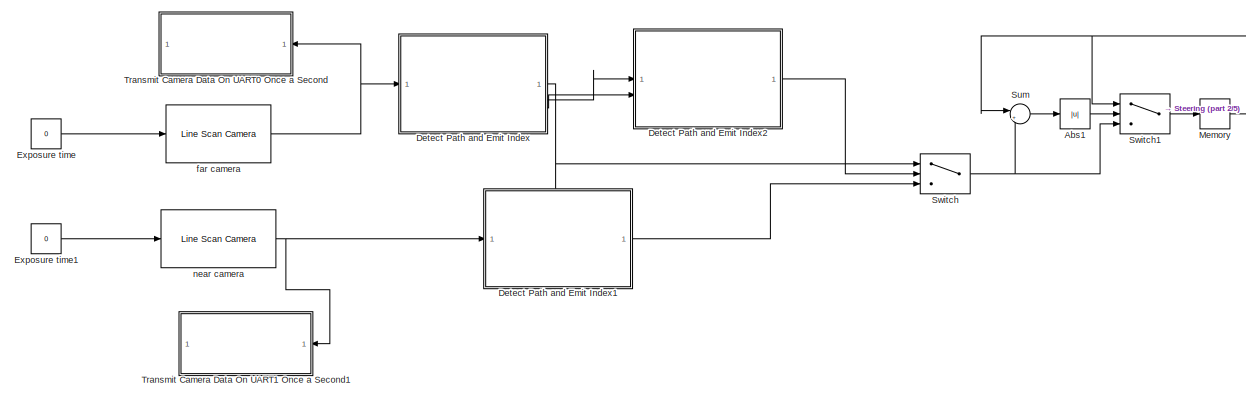
[diagram: root canvas - part 1/5, top center region]
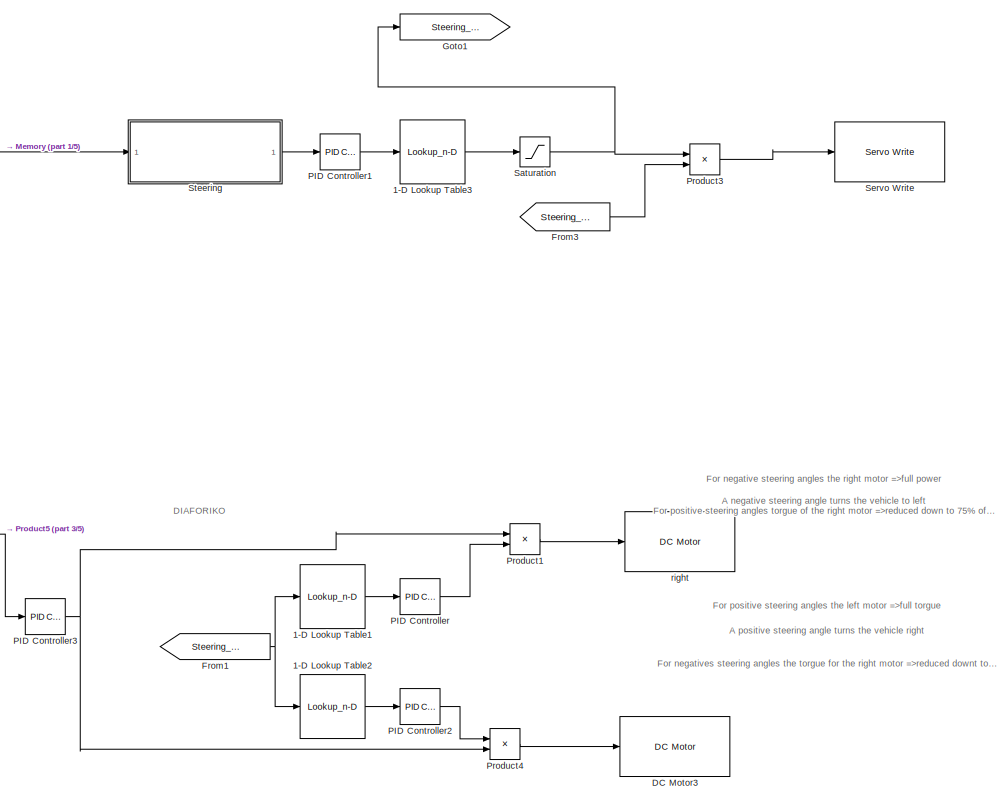
[diagram: root canvas - part 2/5, middle right region]
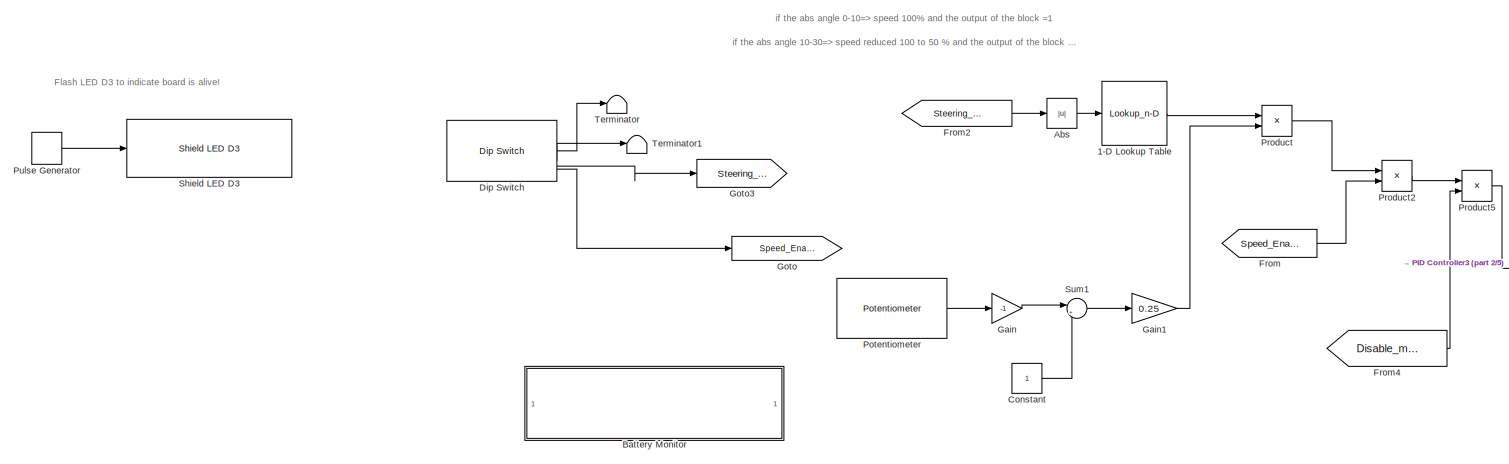
[diagram: root canvas - part 3/5, central region]
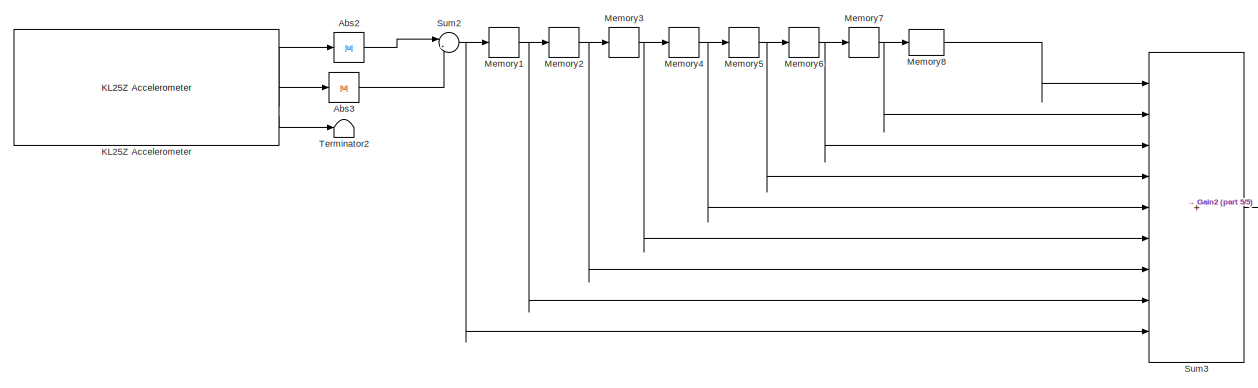
[diagram: root canvas - part 4/5, bottom left region]
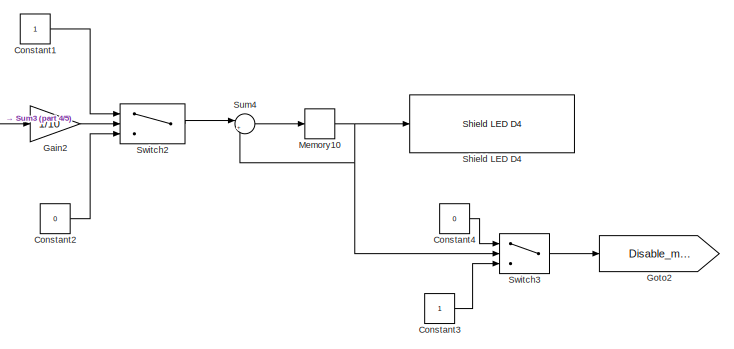
[diagram: root canvas - part 5/5, bottom center region]
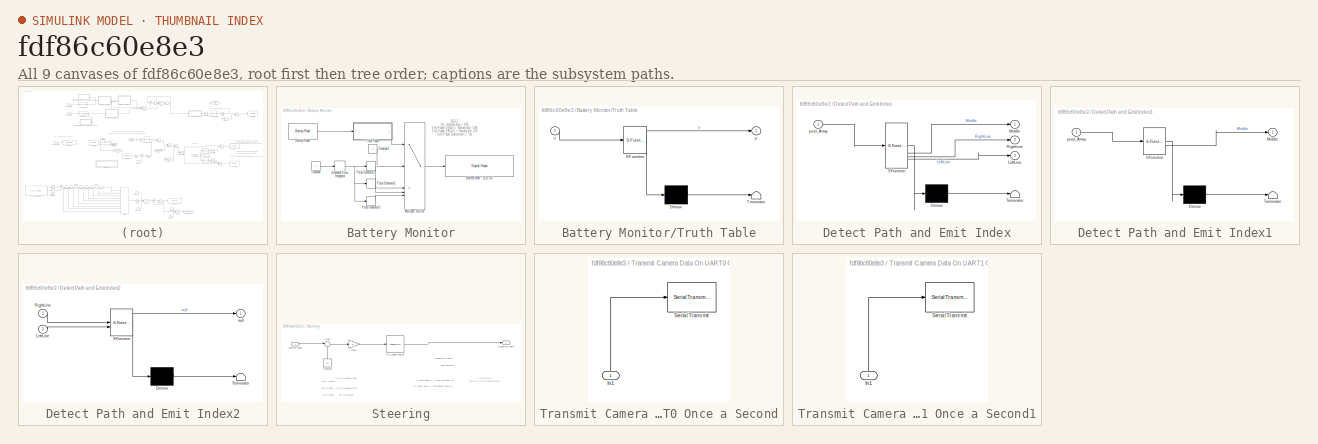
[diagram: thumbnail index - all 9 canvases of the model, root first then tree order]
MODEL slx_fdf86c60e8e3
KIND model
CONFIG AbsTol = auto
CONFIG EnableMultiTasking = off
CONFIG FixedStep = auto
CONFIG MaxStep = auto
CONFIG MinStep = auto
CONFIG RelTol = 1e-3
CONFIG SampleTimeConstraint = Unconstrained
CONFIG SolverName = VariableStepAuto
CONFIG StartTime = 0.0
CONFIG StopTime = 10.0
BLOCK [Lookup_n-D] 1-D Lookup Table
  BreakpointsForDimension1 = [0  10 20 30 60]
  ExtrapMethod = Clip
  InputPortMap = u0
  InternalRulePriority = Speed
  NumberOfTableDimensions = 1
  RndMeth = Simplest
  Table = [ 1.4 0.9 1.2 0.95 1.4]
  UseLastTableValue = on
BLOCK [Lookup_n-D] 1-D Lookup Table1
  BreakpointsForDimension1 = [-60 0 10 20 60]
  ExtrapMethod = Clip
  InputPortMap = u0
  InternalRulePriority = Speed
  NumberOfTableDimensions = 1
  RndMeth = Simplest
  Table = [1.1 1.1 1 0.6 0.8]
  UseLastTableValue = on
BLOCK [Lookup_n-D] 1-D Lookup Table2
  BreakpointsForDimension1 = [-60  -20 -10  0 60]
  ExtrapMethod = Clip
  InputPortMap = u0
  InternalRulePriority = Speed
  NumberOfTableDimensions = 1
  RndMeth = Simplest
  Table = [0.8 0.6 1 1.1 1.1]
  UseLastTableValue = on
BLOCK [Lookup_n-D] 1-D Lookup Table3
  BreakpointsForDimension1 = [-60 -9 9 60]
  ExtrapMethod = Clip
  InputPortMap = u0
  InternalRulePriority = Speed
  NumberOfTableDimensions = 1
  RndMeth = Simplest
  Table = [-60 0 0 60]
  UseLastTableValue = on
BLOCK [Abs] Abs
  SaturateOnIntegerOverflow = off
BLOCK [Abs] Abs1
  SaturateOnIntegerOverflow = off
BLOCK [Abs] Abs2
  SaturateOnIntegerOverflow = off
BLOCK [Abs] Abs3
  SaturateOnIntegerOverflow = off
BLOCK [SubSystem] Battery Monitor
  SystemSampleTime = 0.1
  TreatAsAtomicUnit = on
BLOCK [Reference] Battery Monitor/Battery Level - LED D5  REF=RHIT_KL25Z_Library/Basic Blocks/Digital Output
  SourceBlock = RHIT_KL25Z_Library/Basic Blocks/Digital Output
  SourceProductName = RHIT KL25Z Library
  SourceType = KL25Z Ditigal Output
BLOCK [Reference] Battery Monitor/Battery Read  REF=frdmtfcshieldlib/Battery Read
  SourceBlock = frdmtfcshieldlib/Battery Read
  SourceType = Battery Read
BLOCK [Constant] Battery Monitor/Constant
BLOCK [Constant] Battery Monitor/Constant3
  OutDataTypeStr = single
BLOCK [DiscreteIntegrator] Battery Monitor/Discrete-Time Integrator
  ICPrevOutput = DiscIntNeverNeededParam
  ICPrevScaledInput = DiscIntNeverNeededParam
  InitialConditionSetting = Auto
  SampleTime = -1
BLOCK [MultiPortSwitch] Battery Monitor/Multiport Switch
  InputSameDT = off
  Inputs = 4
  SaturateOnIntegerOverflow = off
BLOCK [DiscretePulseGenerator] Battery Monitor/Pulse Generator1
  Period = 1
  PulseType = Time based
  PulseWidth = 50
  TimeSource = Use external signal
BLOCK [DiscretePulseGenerator] Battery Monitor/Pulse Generator2
  Period = .5
  PulseType = Time based
  PulseWidth = 60
  TimeSource = Use external signal
BLOCK [DiscretePulseGenerator] Battery Monitor/Pulse Generator3
  Period = .2
  PulseType = Time based
  PulseWidth = 50
  TimeSource = Use external signal
BLOCK [SubSystem] Battery Monitor/Truth Table
  ErrorFcn = Stateflow.Translate.translate
  PermitHierarchicalResolution = ExplicitOnly
  SFBlockType = Truth Table
  TreatAsAtomicUnit = on
BLOCK [Demux] Battery Monitor/Truth Table/ Demux 
  Outputs = 1
BLOCK [S-Function] Battery Monitor/Truth Table/ SFunction 
  EnableBusSupport = on
  FunctionName = sf_sfun
  PortCounts = [1 2]
  SFcnIsStateOwnerBlock = off
  SFunctionDeploymentMode = off
  Tag = Stateflow S-Function 1
BLOCK [Terminator] Battery Monitor/Truth Table/ Terminator 
BLOCK [Inport] Battery Monitor/Truth Table/u
BLOCK [Outport] Battery Monitor/Truth Table/y
BLOCK [Constant] Constant
BLOCK [Constant] Constant1
BLOCK [Constant] Constant2
  Value = 0
BLOCK [Constant] Constant3
BLOCK [Constant] Constant4
  Value = 0
BLOCK [Reference] DC Motor3  REF=frdmtfcshieldlib/DC Motor
  SourceBlock = frdmtfcshieldlib/DC Motor
  SourceType = DC Motor
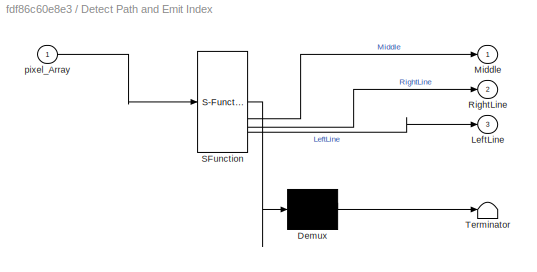
BLOCK [SubSystem] Detect Path and Emit Index
  ErrorFcn = Stateflow.Translate.translate
  PermitHierarchicalResolution = ExplicitOnly
  SFBlockType = MATLAB Function
  TreatAsAtomicUnit = on
BLOCK [Demux] Detect Path and Emit Index/ Demux 
  Outputs = 1
BLOCK [S-Function] Detect Path and Emit Index/ SFunction 
  EnableBusSupport = on
  FunctionName = sf_sfun
  PortCounts = [1 4]
  SFcnIsStateOwnerBlock = off
  SFunctionDeploymentMode = off
  Tag = Stateflow S-Function 2
BLOCK [Terminator] Detect Path and Emit Index/ Terminator 
BLOCK [Outport] Detect Path and Emit Index/LeftLine
  Port = 3
BLOCK [Outport] Detect Path and Emit Index/Middle
BLOCK [Outport] Detect Path and Emit Index/RightLine
  Port = 2
BLOCK [Inport] Detect Path and Emit Index/pixel_Array
BLOCK [SubSystem] Detect Path and Emit Index1
  ErrorFcn = Stateflow.Translate.translate
  PermitHierarchicalResolution = ExplicitOnly
  SFBlockType = MATLAB Function
  TreatAsAtomicUnit = on
BLOCK [Demux] Detect Path and Emit Index1/ Demux 
  Outputs = 1
BLOCK [S-Function] Detect Path and Emit Index1/ SFunction 
  EnableBusSupport = on
  FunctionName = sf_sfun
  PortCounts = [1 2]
  SFcnIsStateOwnerBlock = off
  SFunctionDeploymentMode = off
  Tag = Stateflow S-Function 3
BLOCK [Terminator] Detect Path and Emit Index1/ Terminator 
BLOCK [Outport] Detect Path and Emit Index1/Middle
BLOCK [Inport] Detect Path and Emit Index1/pixel_Array
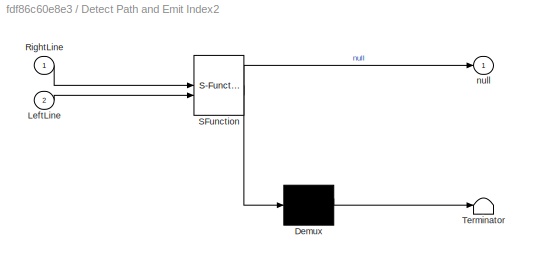
BLOCK [SubSystem] Detect Path and Emit Index2
  ErrorFcn = Stateflow.Translate.translate
  PermitHierarchicalResolution = ExplicitOnly
  SFBlockType = MATLAB Function
  TreatAsAtomicUnit = on
BLOCK [Demux] Detect Path and Emit Index2/ Demux 
  Outputs = 1
BLOCK [S-Function] Detect Path and Emit Index2/ SFunction 
  EnableBusSupport = on
  FunctionName = sf_sfun
  PortCounts = [2 2]
  SFcnIsStateOwnerBlock = off
  SFunctionDeploymentMode = off
  Tag = Stateflow S-Function 4
BLOCK [Terminator] Detect Path and Emit Index2/ Terminator 
BLOCK [Inport] Detect Path and Emit Index2/LeftLine
  Port = 2
BLOCK [Inport] Detect Path and Emit Index2/RightLine
BLOCK [Outport] Detect Path and Emit Index2/null
BLOCK [Reference] Dip Switch  REF=frdmtfcshieldlib/Dip Switch
  SourceBlock = frdmtfcshieldlib/Dip Switch
  SourceType = Dip Switch
BLOCK [Constant] Exposure time
  Value = 0
BLOCK [Constant] Exposure time1
  Value = 0
BLOCK [From] From
  GotoTag = Speed_Enable
BLOCK [From] From1
  GotoTag = Steering_Angle
BLOCK [From] From2
  GotoTag = Steering_Angle
BLOCK [From] From3
  GotoTag = Steering_Enable
BLOCK [From] From4
  GotoTag = Disable_motors
BLOCK [Gain] Gain
  Gain = -1
BLOCK [Gain] Gain1
  Gain = 0.25
BLOCK [Gain] Gain2
  Gain = 1/10
BLOCK [Goto] Goto
  GotoTag = Speed_Enable
BLOCK [Goto] Goto1
  GotoTag = Steering_Angle
BLOCK [Goto] Goto2
  GotoTag = Disable_motors
BLOCK [Goto] Goto3
  GotoTag = Steering_Enable
BLOCK [Reference] KL25Z Accelerometer  REF=RHIT_KL25Z_Library/Sensor Read Functions/KL25Z Accelerometer
  SourceBlock = RHIT_KL25Z_Library/Sensor Read Functions/KL25Z Accelerometer
  SourceProductName = RHIT KL25Z Library
  SourceType = Read the FRDM-KL25Z On-Board Acceletrometer (MMA8451Q)
BLOCK [Memory] Memory
  InitialCondition = 64
BLOCK [Memory] Memory1
BLOCK [Memory] Memory10
BLOCK [Memory] Memory2
BLOCK [Memory] Memory3
BLOCK [Memory] Memory4
BLOCK [Memory] Memory5
BLOCK [Memory] Memory6
BLOCK [Memory] Memory7
BLOCK [Memory] Memory8
BLOCK [Reference] PID Controller  REF=slpidlib/PID Controller
  LibrarySourceBlock = simulink/Continuous/PID Controller
  SourceBlock = slpidlib/PID Controller
  SourceType = PID 1dof
BLOCK [Reference] PID Controller1  REF=slpidlib/PID Controller
  LibrarySourceBlock = simulink/Continuous/PID Controller
  SourceBlock = slpidlib/PID Controller
  SourceType = PID 1dof
BLOCK [Reference] PID Controller2  REF=slpidlib/PID Controller
  LibrarySourceBlock = simulink/Continuous/PID Controller
  SourceBlock = slpidlib/PID Controller
  SourceType = PID 1dof
BLOCK [Reference] PID Controller3  REF=slpidlib/PID Controller
  LibrarySourceBlock = simulink/Continuous/PID Controller
  SourceBlock = slpidlib/PID Controller
  SourceType = PID 1dof
BLOCK [Reference] Potentiometer  REF=frdmtfcshieldlib/Potentiometer
  SourceBlock = frdmtfcshieldlib/Potentiometer
  SourceType = Potentiometer
BLOCK [Product] Product
BLOCK [Product] Product1
BLOCK [Product] Product2
BLOCK [Product] Product3
BLOCK [Product] Product4
BLOCK [Product] Product5
BLOCK [DiscretePulseGenerator] Pulse Generator
  Period = 10
  PulseType = Time based
  PulseWidth = 5
BLOCK [Saturate] Saturation
  LowerLimit = -60
  UpperLimit = 60
BLOCK [Reference] Servo Write  REF=frdmtfcshieldlib/Servo Write
  SourceBlock = frdmtfcshieldlib/Servo Write
  SourceType = Servo Write
BLOCK [Reference] Shield LED D3  REF=Autonomous_Vehicle_Competition/Shield LED D3
  SourceBlock = Autonomous_Vehicle_Competition/Shield LED D3
  SourceProductName = Autonomous Vehicle Competition
  SourceType = Shield LED D3
BLOCK [Reference] Shield LED D4  REF=Autonomous_Vehicle_Competition/Shield LED D4
  SourceBlock = Autonomous_Vehicle_Competition/Shield LED D4
  SourceProductName = Autonomous Vehicle Competition
  SourceType = Shield LED D4
BLOCK [SubSystem] Steering
BLOCK [Lookup_n-D] Steering/1-D Lookup Table3
  BreakpointsForDimension1 = [-60 -9 9 60]
  ExtrapMethod = Clip
  InputPortMap = u0
  InternalRulePriority = Speed
  NumberOfTableDimensions = 1
  RndMeth = Simplest
  Table = [-60 0 0 60]
  UseLastTableValue = on
BLOCK [Constant] Steering/Constant
  NameLocation = right
  Value = 64
BLOCK [Gain] Steering/Gain
  Gain = 5
BLOCK [Outport] Steering/Steering Angle
BLOCK [Sum] Steering/Sum
  Inputs = |+-
BLOCK [Inport] Steering/Vehicle Index
BLOCK [Sum] Sum
  Inputs = |+-
BLOCK [Sum] Sum1
  Inputs = |++
BLOCK [Sum] Sum2
  Inputs = |++
BLOCK [Sum] Sum3
  IconShape = rectangular
  Inputs = |+++++++++
BLOCK [Sum] Sum4
  Inputs = |++
BLOCK [Switch] Switch
  Criteria = u2 > Threshold
  InputSameDT = off
  SaturateOnIntegerOverflow = off
  Threshold = 1
BLOCK [Switch] Switch1
  Criteria = u2 > Threshold
  InputSameDT = off
  SaturateOnIntegerOverflow = off
  Threshold = 10
BLOCK [Switch] Switch2
  Criteria = u2 > Threshold
  InputSameDT = off
  SaturateOnIntegerOverflow = off
  Threshold = 1.5
BLOCK [Switch] Switch3
  Criteria = u2 > Threshold
  InputSameDT = off
  SaturateOnIntegerOverflow = off
BLOCK [Terminator] Terminator
BLOCK [Terminator] Terminator1
BLOCK [Terminator] Terminator2
BLOCK [SubSystem] Transmit Camera Data On UART0 Once a Second
  SystemSampleTime = .26
  TreatAsAtomicUnit = on
BLOCK [Inport] Transmit Camera Data On UART0 Once a Second/In1
  NameLocation = right
BLOCK [Reference] Transmit Camera Data On UART0 Once a Second/Serial Transmit  REF=frdmkl25zlib/Serial Transmit
  SourceBlock = frdmkl25zlib/Serial Transmit
  SourceType = Serial Transmit
BLOCK [SubSystem] Transmit Camera Data On UART1 Once a Second1
  SystemSampleTime = .26
  TreatAsAtomicUnit = on
BLOCK [Inport] Transmit Camera Data On UART1 Once a Second1/In1
  NameLocation = right
BLOCK [Reference] Transmit Camera Data On UART1 Once a Second1/Serial Transmit  REF=frdmkl25zlib/Serial Transmit
  SourceBlock = frdmkl25zlib/Serial Transmit
  SourceType = Serial Transmit
BLOCK [Reference] far camera   REF=frdmtfcshieldlib/Line Scan Camera
  SourceBlock = frdmtfcshieldlib/Line Scan Camera
  SourceType = Line Scan Camera
BLOCK [Reference] near camera  REF=frdmtfcshieldlib/Line Scan Camera
  SourceBlock = frdmtfcshieldlib/Line Scan Camera
  SourceType = Line Scan Camera
BLOCK [Reference] right  REF=frdmtfcshieldlib/DC Motor
  SourceBlock = frdmtfcshieldlib/DC Motor
  SourceType = DC Motor
ANNOTATION (root): Flash LED D3 to indicate board is alive!
ANNOTATION (root): A negative steering angle turns the vehicle to left
ANNOTATION (root): A positive steering angle turns the vehicle right
ANNOTATION (root): DIAFORIKO
ANNOTATION (root): For negative steering angles the right motor =>full power
ANNOTATION (root): For negatives steering angles the torgue for the right motor =>reduced downt to 75% of the full torgue
ANNOTATION (root): For positive steering angles the left motor =>full torgue
ANNOTATION (root): For positive steering angles torgue of the right motor =>reduced down to 75% of the full torgue
ANNOTATION (root): if the abs angle 0-10=> speed 100% and the output of the block =1
ANNOTATION (root): if the abs angle 10-30=> speed reduced 100 to 50 % and the output of the block => 1 down ot 0.5
ANNOTATION Battery Monitor: LED 5 On - Battery >= 0.95 1 Hz Flash: 0.9 <= Battery < 0.95 2 Hz Flash: 0.85 <= Battery < 0.9 5 Hz Flash: Battery <= .85
ANNOTATION Steering: AVOIDING DEAD SPOT STEERING
ANNOTATION Steering: (-1)x(-1)+1=2x2=4 max
ANNOTATION Steering: (1)x(-1)+1=0x2=0 min
ANNOTATION Steering: 0x(-1)+1=1x2=2
ANNOTATION Steering: Gia +1 pote
ANNOTATION Steering: Gia -1 pote
ANNOTATION Steering: Gia 0 pote
ANNOTATION Steering: breakpoints=inputs
ANNOTATION Steering: if input angle = -2 then the outut =0
ANNOTATION Steering: if input angle = 2 the output angle =0
ANNOTATION Steering: table=outputs
LINE 1-D Lookup Table1:1 -> PID Controller:1
LINE 1-D Lookup Table2:1 -> PID Controller2:1
LINE 1-D Lookup Table3:1 -> Saturation:1
LINE 1-D Lookup Table:1 -> Product:1
LINE Abs1:1 -> Switch1:2
LINE Abs2:1 -> Sum2:1
LINE Abs3:1 -> Sum2:2
LINE Abs:1 -> 1-D Lookup Table:1
LINE Battery Monitor/Battery Read:1 -> Battery Monitor/Truth Table:1
LINE Battery Monitor/Constant3:1 -> Battery Monitor/Multiport Switch:2
LINE Battery Monitor/Constant:1 -> Battery Monitor/Discrete-Time Integrator:1
NET Battery Monitor/Discrete-Time Integrator:1 -> Battery Monitor/Pulse Generator1:1, Battery Monitor/Pulse Generator2:1, Battery Monitor/Pulse Generator3:1
LINE Battery Monitor/Multiport Switch:1 -> Battery Monitor/Battery Level - LED D5:1
LINE Battery Monitor/Pulse Generator1:1 -> Battery Monitor/Multiport Switch:3
LINE Battery Monitor/Pulse Generator2:1 -> Battery Monitor/Multiport Switch:4
LINE Battery Monitor/Pulse Generator3:1 -> Battery Monitor/Multiport Switch:5
LINE Battery Monitor/Truth Table:1 -> Battery Monitor/Multiport Switch:1
LINE Constant1:1 -> Switch2:1
LINE Constant2:1 -> Switch2:3
LINE Constant3:1 -> Switch3:3
LINE Constant4:1 -> Switch3:1
LINE Constant:1 -> Sum1:2
LINE Detect Path and Emit Index1:1 -> Switch:3
LINE Detect Path and Emit Index2:1 -> Switch:2
LINE Detect Path and Emit Index:1 -> Switch:1
LINE Detect Path and Emit Index:2 -> Detect Path and Emit Index2:1
LINE Detect Path and Emit Index:3 -> Detect Path and Emit Index2:2
LINE Dip Switch:1 -> Terminator:1
LINE Dip Switch:2 -> Terminator1:1
LINE Dip Switch:3 -> Goto3:1
LINE Dip Switch:4 -> Goto:1
LINE Exposure time1:1 -> near camera:1
LINE Exposure time:1 -> far camera :1
NET From1:1 -> 1-D Lookup Table1:1, 1-D Lookup Table2:1
LINE From2:1 -> Abs:1
LINE From3:1 -> Product3:2
LINE From4:1 -> Product5:2
LINE From:1 -> Product2:2
LINE Gain1:1 -> Product:2
LINE Gain2:1 -> Switch2:2
LINE Gain:1 -> Sum1:1
LINE KL25Z Accelerometer:1 -> Abs2:1
LINE KL25Z Accelerometer:2 -> Abs3:1
LINE KL25Z Accelerometer:3 -> Terminator2:1
NET Memory10:1 -> Shield LED D4:1, Sum4:2, Switch3:2
NET Memory1:1 -> Memory2:1, Sum3:8
NET Memory2:1 -> Memory3:1, Sum3:7
NET Memory3:1 -> Memory4:1, Sum3:6
NET Memory4:1 -> Memory5:1, Sum3:5
NET Memory5:1 -> Memory6:1, Sum3:4
NET Memory6:1 -> Memory7:1, Sum3:3
NET Memory7:1 -> Memory8:1, Sum3:2
LINE Memory8:1 -> Sum3:1
NET Memory:1 -> Steering:1, Sum:1, Switch1:1
LINE PID Controller1:1 -> 1-D Lookup Table3:1
LINE PID Controller2:1 -> Product4:1
NET PID Controller3:1 -> Product1:1, Product4:2
LINE PID Controller:1 -> Product1:2
LINE Potentiometer:1 -> Gain:1
LINE Product1:1 -> right:1
LINE Product2:1 -> Product5:1
LINE Product3:1 -> Servo Write:1
LINE Product4:1 -> DC Motor3:1
LINE Product5:1 -> PID Controller3:1
LINE Product:1 -> Product2:1
LINE Pulse Generator:1 -> Shield LED D3:1
NET Saturation:1 -> Goto1:1, Product3:1
LINE Steering/1-D Lookup Table3:1 -> Steering/Steering Angle:1
LINE Steering/Constant:1 -> Steering/Sum:2
LINE Steering/Gain:1 -> Steering/1-D Lookup Table3:1
LINE Steering/Sum:1 -> Steering/Gain:1
LINE Steering/Vehicle Index:1 -> Steering/Sum:1
LINE Steering:1 -> PID Controller1:1
LINE Sum1:1 -> Gain1:1
NET Sum2:1 -> Memory1:1, Sum3:9
LINE Sum3:1 -> Gain2:1
LINE Sum4:1 -> Memory10:1
LINE Sum:1 -> Abs1:1
LINE Switch1:1 -> Memory:1
LINE Switch2:1 -> Sum4:1
LINE Switch3:1 -> Goto2:1
NET Switch:1 -> Sum:2, Switch1:3
LINE Transmit Camera Data On UART0 Once a Second/In1:1 -> Transmit Camera Data On UART0 Once a Second/Serial Transmit:1
LINE Transmit Camera Data On UART1 Once a Second1/In1:1 -> Transmit Camera Data On UART1 Once a Second1/Serial Transmit:1
NET far camera :1 -> Detect Path and Emit Index:1, Transmit Camera Data On UART0 Once a Second:1
NET near camera:1 -> Detect Path and Emit Index1:1, Transmit Camera Data On UART1 Once a Second1:1
note: NET lines group one-source signal fan-out (src -> all destinations, sorted); 1:1 wires keep LINE
CHART Battery Monitor/Truth Table states=1 transitions=1
  STATE_LABEL 'tt_blk_kernel'
  STATE_LABEL 'SCRIPT:\nfunction y = fcn(u)\n\naVarTruthTableCondition_1 = false;\naVarTruthTableCondition_2 = false;\naVarTruthTableCondition_3 = false;\n\n\n% Fully Charged\n\naVarTruthTableCondition_1 = logical(u >= 0.95);\n\n% Low\n\naVarTruthTableCondition_2 = logical(u>=0.9);\n\n% Lower\n\naVarTruthTableCondition_3 = logical(u>=.85);\n\nif (aVarTruthTableCondition_1 && aVarTruthTableCondition_2 && aVarTruthTableCondition_3)\n ...<+660ch>'
CHART Detect Path and Emit Index states=1 transitions=1
  STATE_LABEL 'eML_blk_kernel()'
  STATE_LABEL 'SCRIPT:\n  function [Middle,RightLine,LeftLine] = Steering_Function(pixel_Array)\n  \n    % Initialize variables\n    LeftLine = single(1);\n    RightLine = single(127);\n  \n   thresh = 0.75 * mean(pixel_Array(40:80));\n    \n    % Find LeftLine\n    for i = 63:-1:1\n        if pixel_Array(i) < thresh\n            LeftLine = single(i);\n            break;\n        end\n    end\n\n    % Find RightLine\n    for i = ...<+286ch>'
CHART Detect Path and Emit Index1 states=1 transitions=1
  STATE_LABEL 'eML_blk_kernel()'
  STATE_LABEL 'SCRIPT:\nfunction Middle = Steering_Function(pixel_Array)\n    % Initialize variables\n    LeftLine = single(1);\n    RightLine = single(127);\n    Middle=single(64);\n  \n    thresh = 0.75 * mean(pixel_Array(40:80));\n    \n    % Find LeftLine\n    for i = 63:-1:1\n        if pixel_Array(i) < thresh\n            LeftLine = single(i);\n            break;\n        end\n    end\n\n    % Find RightLine\n    for i = 64...<+378ch>'
CHART Detect Path and Emit Index2 states=1 transitions=1
  STATE_LABEL 'eML_blk_kernel()'
  STATE_LABEL 'SCRIPT:\nfunction null = Steering_Function( RightLine, LeftLine)\n                    % Array to store the LineScan image\n\n                    if RightLine>120 && LeftLine<6\n                        null=single(2);\n                        \n                    else\n                        null=single(0);\n                    end \n                    end\n\n\n'
CHART  states=0 transitions=0
CHART  states=0 transitions=0
CHART  states=0 transitions=0
CHART  states=0 transitions=0
